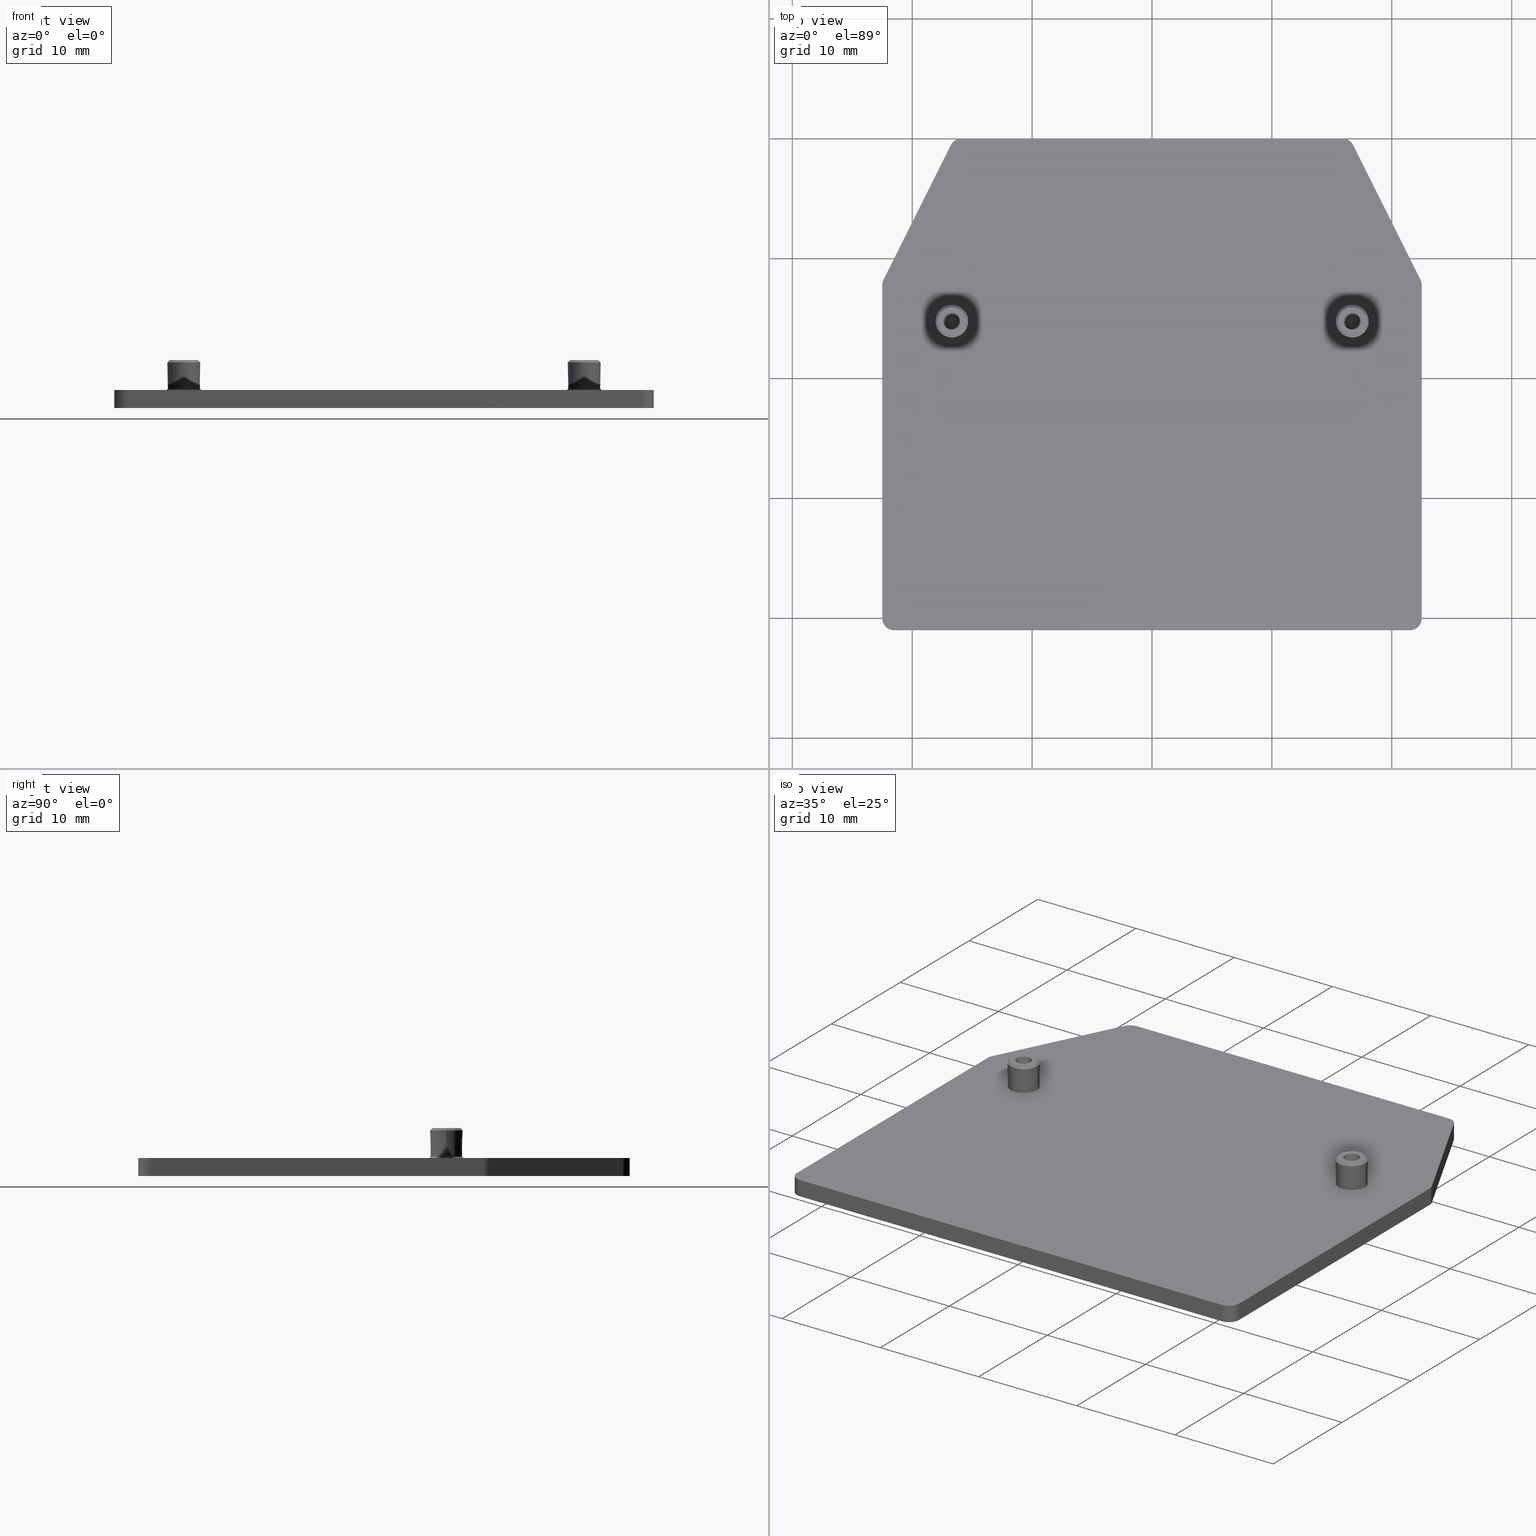
[diagram: canonical four-view strip — front | top / right | iso, engineering-drawing reading convention]
A machine part, canonical four-view strip (front | top / right | iso — engineering-drawing reading convention). The complete STEP part file that produces these views, byte-faithful:
ISO-10303-21;
HEADER;
FILE_DESCRIPTION((''),'2;1');
FILE_NAME('42164_EB10','2010-04-12T',('EJVarlan'),('Rockwell Automation'),
'PRO/ENGINEER BY PARAMETRIC TECHNOLOGY CORPORATION, 2007390',
'PRO/ENGINEER BY PARAMETRIC TECHNOLOGY CORPORATION, 2007390','');
FILE_SCHEMA(('CONFIG_CONTROL_DESIGN'));
ENDSEC;
DATA;
#1=DIRECTION('',(-4.472135955E-1,8.944271909999E-1,0.E0));
#2=VECTOR('',#1,1.256230589875E1);
#3=CARTESIAN_POINT('',(2.239442719100E1,-1.178885438200E1,-7.5E-1));
#4=LINE('',#3,#2);
#5=DIRECTION('',(-1.E0,0.E0,0.E0));
#6=VECTOR('',#5,3.176393202250E1);
#7=CARTESIAN_POINT('',(1.588196601125E1,0.E0,-7.5E-1));
#8=LINE('',#7,#6);
#9=DIRECTION('',(-4.472135955E-1,-8.944271909999E-1,0.E0));
#10=VECTOR('',#9,1.256230589875E1);
#11=CARTESIAN_POINT('',(-1.677639320225E1,-5.527864045E-1,-7.5E-1));
#12=LINE('',#11,#10);
#13=DIRECTION('',(0.E0,-1.E0,0.E0));
#14=VECTOR('',#13,2.776393202250E1);
#15=CARTESIAN_POINT('',(-2.25E1,-1.223606797750E1,-7.5E-1));
#16=LINE('',#15,#14);
#17=DIRECTION('',(1.E0,0.E0,0.E0));
#18=VECTOR('',#17,4.3E1);
#19=CARTESIAN_POINT('',(-2.15E1,-4.1E1,-7.5E-1));
#20=LINE('',#19,#18);
#21=DIRECTION('',(0.E0,1.E0,0.E0));
#22=VECTOR('',#21,2.776393202250E1);
#23=CARTESIAN_POINT('',(2.25E1,-4.E1,-7.5E-1));
#24=LINE('',#23,#22);
#25=DIRECTION('',(0.E0,0.E0,1.E0));
#26=VECTOR('',#25,1.5E0);
#27=CARTESIAN_POINT('',(2.25E1,-1.223606797750E1,-7.5E-1));
#28=LINE('',#27,#26);
#29=CARTESIAN_POINT('',(2.15E1,-1.223606797750E1,7.5E-1));
#30=DIRECTION('',(0.E0,0.E0,1.E0));
#31=DIRECTION('',(1.E0,0.E0,0.E0));
#32=AXIS2_PLACEMENT_3D('',#29,#30,#31);
#34=DIRECTION('',(0.E0,0.E0,1.E0));
#35=VECTOR('',#34,1.5E0);
#36=CARTESIAN_POINT('',(2.239442719100E1,-1.178885438200E1,-7.5E-1));
#37=LINE('',#36,#35);
#38=CARTESIAN_POINT('',(2.15E1,-1.223606797750E1,-7.5E-1));
#39=DIRECTION('',(0.E0,0.E0,1.E0));
#40=DIRECTION('',(1.E0,0.E0,0.E0));
#41=AXIS2_PLACEMENT_3D('',#38,#39,#40);
#43=DIRECTION('',(0.E0,0.E0,1.E0));
#44=VECTOR('',#43,1.5E0);
#45=CARTESIAN_POINT('',(2.25E1,-4.E1,-7.5E-1));
#46=LINE('',#45,#44);
#47=CARTESIAN_POINT('',(2.15E1,-4.E1,-7.5E-1));
#48=DIRECTION('',(0.E0,0.E0,-1.E0));
#49=DIRECTION('',(1.E0,0.E0,0.E0));
#50=AXIS2_PLACEMENT_3D('',#47,#48,#49);
#52=DIRECTION('',(0.E0,0.E0,1.E0));
#53=VECTOR('',#52,1.5E0);
#54=CARTESIAN_POINT('',(2.15E1,-4.1E1,-7.5E-1));
#55=LINE('',#54,#53);
#56=CARTESIAN_POINT('',(2.15E1,-4.E1,7.5E-1));
#57=DIRECTION('',(0.E0,0.E0,-1.E0));
#58=DIRECTION('',(1.E0,0.E0,0.E0));
#59=AXIS2_PLACEMENT_3D('',#56,#57,#58);
#61=DIRECTION('',(0.E0,0.E0,1.E0));
#62=VECTOR('',#61,1.5E0);
#63=CARTESIAN_POINT('',(-2.15E1,-4.1E1,-7.5E-1));
#64=LINE('',#63,#62);
#65=CARTESIAN_POINT('',(-2.15E1,-4.E1,-7.5E-1));
#66=DIRECTION('',(0.E0,0.E0,-1.E0));
#67=DIRECTION('',(0.E0,-1.E0,0.E0));
#68=AXIS2_PLACEMENT_3D('',#65,#66,#67);
#70=DIRECTION('',(0.E0,0.E0,1.E0));
#71=VECTOR('',#70,1.5E0);
#72=CARTESIAN_POINT('',(-2.25E1,-4.E1,-7.5E-1));
#73=LINE('',#72,#71);
#74=CARTESIAN_POINT('',(-2.15E1,-4.E1,7.5E-1));
#75=DIRECTION('',(0.E0,0.E0,-1.E0));
#76=DIRECTION('',(0.E0,-1.E0,0.E0));
#77=AXIS2_PLACEMENT_3D('',#74,#75,#76);
#79=DIRECTION('',(0.E0,0.E0,1.E0));
#80=VECTOR('',#79,1.5E0);
#81=CARTESIAN_POINT('',(-2.25E1,-1.223606797750E1,-7.5E-1));
#82=LINE('',#81,#80);
#83=CARTESIAN_POINT('',(-2.15E1,-1.223606797750E1,-7.5E-1));
#84=DIRECTION('',(0.E0,0.E0,-1.E0));
#85=DIRECTION('',(-1.E0,0.E0,0.E0));
#86=AXIS2_PLACEMENT_3D('',#83,#84,#85);
#88=DIRECTION('',(0.E0,0.E0,1.E0));
#89=VECTOR('',#88,1.5E0);
#90=CARTESIAN_POINT('',(-2.239442719100E1,-1.178885438200E1,-7.5E-1));
#91=LINE('',#90,#89);
#92=CARTESIAN_POINT('',(-2.15E1,-1.223606797750E1,7.5E-1));
#93=DIRECTION('',(0.E0,0.E0,-1.E0));
#94=DIRECTION('',(-1.E0,0.E0,0.E0));
#95=AXIS2_PLACEMENT_3D('',#92,#93,#94);
#97=DIRECTION('',(0.E0,0.E0,1.E0));
#98=VECTOR('',#97,1.5E0);
#99=CARTESIAN_POINT('',(-1.588196601125E1,0.E0,-7.5E-1));
#100=LINE('',#99,#98);
#101=CARTESIAN_POINT('',(-1.588196601125E1,-1.E0,7.5E-1));
#102=DIRECTION('',(0.E0,0.E0,1.E0));
#103=DIRECTION('',(0.E0,1.E0,0.E0));
#104=AXIS2_PLACEMENT_3D('',#101,#102,#103);
#106=DIRECTION('',(0.E0,0.E0,1.E0));
#107=VECTOR('',#106,1.5E0);
#108=CARTESIAN_POINT('',(-1.677639320225E1,-5.527864045E-1,-7.5E-1));
#109=LINE('',#108,#107);
#110=CARTESIAN_POINT('',(-1.588196601125E1,-1.E0,-7.5E-1));
#111=DIRECTION('',(0.E0,0.E0,1.E0));
#112=DIRECTION('',(0.E0,1.E0,0.E0));
#113=AXIS2_PLACEMENT_3D('',#110,#111,#112);
#115=DIRECTION('',(0.E0,0.E0,1.E0));
#116=VECTOR('',#115,1.5E0);
#117=CARTESIAN_POINT('',(1.588196601125E1,0.E0,-7.5E-1));
#118=LINE('',#117,#116);
#119=CARTESIAN_POINT('',(1.588196601125E1,-1.E0,-7.5E-1));
#120=DIRECTION('',(0.E0,0.E0,-1.E0));
#121=DIRECTION('',(0.E0,1.E0,0.E0));
#122=AXIS2_PLACEMENT_3D('',#119,#120,#121);
#124=DIRECTION('',(0.E0,0.E0,1.E0));
#125=VECTOR('',#124,1.5E0);
#126=CARTESIAN_POINT('',(1.677639320225E1,-5.527864045E-1,-7.5E-1));
#127=LINE('',#126,#125);
#128=CARTESIAN_POINT('',(1.588196601125E1,-1.E0,7.5E-1));
#129=DIRECTION('',(0.E0,0.E0,-1.E0));
#130=DIRECTION('',(0.E0,1.E0,0.E0));
#131=AXIS2_PLACEMENT_3D('',#128,#129,#130);
#133=DIRECTION('',(-4.472135955E-1,8.944271909999E-1,0.E0));
#134=VECTOR('',#133,1.256230589875E1);
#135=CARTESIAN_POINT('',(2.239442719100E1,-1.178885438200E1,7.5E-1));
#136=LINE('',#135,#134);
#137=DIRECTION('',(0.E0,1.E0,0.E0));
#138=VECTOR('',#137,2.776393202250E1);
#139=CARTESIAN_POINT('',(2.25E1,-4.E1,7.5E-1));
#140=LINE('',#139,#138);
#141=DIRECTION('',(1.E0,0.E0,0.E0));
#142=VECTOR('',#141,4.3E1);
#143=CARTESIAN_POINT('',(-2.15E1,-4.1E1,7.5E-1));
#144=LINE('',#143,#142);
#145=DIRECTION('',(0.E0,-1.E0,0.E0));
#146=VECTOR('',#145,2.776393202250E1);
#147=CARTESIAN_POINT('',(-2.25E1,-1.223606797750E1,7.5E-1));
#148=LINE('',#147,#146);
#149=DIRECTION('',(-4.472135955E-1,-8.944271909999E-1,0.E0));
#150=VECTOR('',#149,1.256230589875E1);
#151=CARTESIAN_POINT('',(-1.677639320225E1,-5.527864045E-1,7.5E-1));
#152=LINE('',#151,#150);
#153=DIRECTION('',(-1.E0,0.E0,0.E0));
#154=VECTOR('',#153,3.176393202250E1);
#155=CARTESIAN_POINT('',(1.588196601125E1,0.E0,7.5E-1));
#156=LINE('',#155,#154);
#157=CARTESIAN_POINT('',(1.67E1,-1.53E1,7.5E-1));
#158=DIRECTION('',(0.E0,0.E0,-1.E0));
#159=DIRECTION('',(1.E0,3.490385368646E-14,0.E0));
#160=AXIS2_PLACEMENT_3D('',#157,#158,#159);
#162=DIRECTION('',(7.000014281415E-1,-1.141941352680E-13,7.141414429928E-1));
#163=VECTOR('',#162,1.400002856283E-1);
#164=CARTESIAN_POINT('',(1.5275E1,-1.53E1,7.5E-1));
#165=LINE('',#164,#163);
#166=CARTESIAN_POINT('',(1.67E1,-1.53E1,8.499800059980E-1));
#167=DIRECTION('',(0.E0,0.E0,-1.E0));
#168=DIRECTION('',(1.E0,0.E0,0.E0));
#169=AXIS2_PLACEMENT_3D('',#166,#167,#168);
#171=DIRECTION('',(-7.000014281415E-1,-1.141941352680E-13,7.141414429928E-1));
#172=VECTOR('',#171,1.400002856283E-1);
#173=CARTESIAN_POINT('',(1.8125E1,-1.53E1,7.5E-1));
#174=LINE('',#173,#172);
#175=CARTESIAN_POINT('',(1.67E1,-1.53E1,7.5E-1));
#176=DIRECTION('',(0.E0,0.E0,-1.E0));
#177=DIRECTION('',(-1.E0,3.490385368646E-14,0.E0));
#178=AXIS2_PLACEMENT_3D('',#175,#176,#177);
#180=CARTESIAN_POINT('',(1.67E1,-1.53E1,8.499800059980E-1));
#181=DIRECTION('',(0.E0,0.E0,-1.E0));
#182=DIRECTION('',(-1.E0,0.E0,0.E0));
#183=AXIS2_PLACEMENT_3D('',#180,#181,#182);
#185=DIRECTION('',(1.999600119960E-2,0.E0,9.998000599800E-1));
#186=VECTOR('',#185,2.200499950010E0);
#187=CARTESIAN_POINT('',(1.802699960012E1,-1.53E1,8.499800059980E-1));
#188=LINE('',#187,#186);
#189=DIRECTION('',(-1.999600119960E-2,0.E0,9.998000599800E-1));
#190=VECTOR('',#189,2.200499950010E0);
#191=CARTESIAN_POINT('',(1.537300039988E1,-1.53E1,8.499800059980E-1));
#192=LINE('',#191,#190);
#193=CARTESIAN_POINT('',(1.67E1,-1.53E1,3.25E0));
#194=DIRECTION('',(0.E0,0.E0,-1.E0));
#195=DIRECTION('',(1.E0,0.E0,0.E0));
#196=AXIS2_PLACEMENT_3D('',#193,#194,#195);
#198=DIRECTION('',(7.000014281415E-1,0.E0,-7.141414429928E-1));
#199=VECTOR('',#198,2.800005712566E-1);
#200=CARTESIAN_POINT('',(1.7875E1,-1.53E1,3.25E0));
#201=LINE('',#200,#199);
#202=CARTESIAN_POINT('',(1.67E1,-1.53E1,3.050039988004E0));
#203=DIRECTION('',(0.E0,0.E0,-1.E0));
#204=DIRECTION('',(1.E0,0.E0,0.E0));
#205=AXIS2_PLACEMENT_3D('',#202,#203,#204);
#207=DIRECTION('',(-7.000014281416E-1,0.E0,-7.141414429928E-1));
#208=VECTOR('',#207,2.800005712566E-1);
#209=CARTESIAN_POINT('',(1.5525E1,-1.53E1,3.25E0));
#210=LINE('',#209,#208);
#211=CARTESIAN_POINT('',(1.67E1,-1.53E1,3.25E0));
#212=DIRECTION('',(0.E0,0.E0,1.E0));
#213=DIRECTION('',(1.E0,0.E0,0.E0));
#214=AXIS2_PLACEMENT_3D('',#211,#212,#213);
#216=CARTESIAN_POINT('',(1.67E1,-1.53E1,3.25E0));
#217=DIRECTION('',(0.E0,0.E0,1.E0));
#218=DIRECTION('',(-1.E0,0.E0,0.E0));
#219=AXIS2_PLACEMENT_3D('',#216,#217,#218);
#221=CARTESIAN_POINT('',(1.67E1,-1.53E1,3.25E0));
#222=DIRECTION('',(0.E0,0.E0,1.E0));
#223=DIRECTION('',(1.E0,0.E0,0.E0));
#224=AXIS2_PLACEMENT_3D('',#221,#222,#223);
#226=CARTESIAN_POINT('',(1.67E1,-1.53E1,3.050039988004E0));
#227=DIRECTION('',(0.E0,0.E0,1.E0));
#228=DIRECTION('',(1.E0,0.E0,0.E0));
#229=AXIS2_PLACEMENT_3D('',#226,#227,#228);
#231=CARTESIAN_POINT('',(1.67E1,-1.53E1,1.407571664635E0));
#232=DIRECTION('',(0.E0,0.E0,1.E0));
#233=DIRECTION('',(1.E0,0.E0,0.E0));
#234=AXIS2_PLACEMENT_3D('',#231,#232,#233);
#236=DIRECTION('',(-8.715574274766E-2,0.E0,9.961946980917E-1));
#237=VECTOR('',#236,1.849466112292E0);
#238=CARTESIAN_POINT('',(1.616119159270E1,-1.53E1,1.407571664635E0));
#239=LINE('',#238,#237);
#240=CARTESIAN_POINT('',(1.67E1,-1.53E1,1.407571664635E0));
#241=DIRECTION('',(0.E0,0.E0,-1.E0));
#242=DIRECTION('',(1.E0,0.E0,0.E0));
#243=AXIS2_PLACEMENT_3D('',#240,#241,#242);
#245=DIRECTION('',(8.715574274766E-2,0.E0,9.961946980917E-1));
#246=VECTOR('',#245,1.849466112292E0);
#247=CARTESIAN_POINT('',(1.723880840730E1,-1.53E1,1.407571664635E0));
#248=LINE('',#247,#246);
#249=CARTESIAN_POINT('',(1.67E1,-1.53E1,2.25E0));
#250=DIRECTION('',(0.E0,-1.E0,0.E0));
#251=DIRECTION('',(0.E0,0.E0,-1.E0));
#252=AXIS2_PLACEMENT_3D('',#249,#250,#251);
#254=CARTESIAN_POINT('',(1.67E1,-1.53E1,2.25E0));
#255=DIRECTION('',(0.E0,1.E0,0.E0));
#256=DIRECTION('',(0.E0,0.E0,-1.E0));
#257=AXIS2_PLACEMENT_3D('',#254,#255,#256);
#259=CARTESIAN_POINT('',(-1.67E1,-1.53E1,7.5E-1));
#260=DIRECTION('',(0.E0,0.E0,1.E0));
#261=DIRECTION('',(-1.E0,3.490385368646E-14,0.E0));
#262=AXIS2_PLACEMENT_3D('',#259,#260,#261);
#264=DIRECTION('',(7.000014281415E-1,-1.141941352680E-13,7.141414429928E-1));
#265=VECTOR('',#264,1.400002856283E-1);
#266=CARTESIAN_POINT('',(-1.8125E1,-1.53E1,7.5E-1));
#267=LINE('',#266,#265);
#268=CARTESIAN_POINT('',(-1.67E1,-1.53E1,8.499800059980E-1));
#269=DIRECTION('',(0.E0,0.E0,1.E0));
#270=DIRECTION('',(-1.E0,0.E0,0.E0));
#271=AXIS2_PLACEMENT_3D('',#268,#269,#270);
#273=DIRECTION('',(-7.000014281415E-1,-8.881766076402E-14,7.141414429928E-1));
#274=VECTOR('',#273,1.400002856283E-1);
#275=CARTESIAN_POINT('',(-1.5275E1,-1.53E1,7.5E-1));
#276=LINE('',#275,#274);
#277=CARTESIAN_POINT('',(-1.67E1,-1.53E1,7.5E-1));
#278=DIRECTION('',(0.E0,0.E0,1.E0));
#279=DIRECTION('',(1.E0,2.617789026485E-14,0.E0));
#280=AXIS2_PLACEMENT_3D('',#277,#278,#279);
#282=CARTESIAN_POINT('',(-1.67E1,-1.53E1,8.499800059980E-1));
#283=DIRECTION('',(0.E0,0.E0,1.E0));
#284=DIRECTION('',(1.E0,0.E0,0.E0));
#285=AXIS2_PLACEMENT_3D('',#282,#283,#284);
#287=DIRECTION('',(1.999600119960E-2,0.E0,9.998000599800E-1));
#288=VECTOR('',#287,2.204382306872E0);
#289=CARTESIAN_POINT('',(-1.537300039988E1,-1.53E1,8.499800059980E-1));
#290=LINE('',#289,#288);
#291=DIRECTION('',(-1.999600119960E-2,0.E0,9.998000599800E-1));
#292=VECTOR('',#291,2.204382306872E0);
#293=CARTESIAN_POINT('',(-1.802699960012E1,-1.53E1,8.499800059980E-1));
#294=LINE('',#293,#292);
#295=CARTESIAN_POINT('',(-1.67E1,-1.53E1,3.25E0));
#296=DIRECTION('',(0.E0,0.E0,1.E0));
#297=DIRECTION('',(-1.E0,0.E0,0.E0));
#298=AXIS2_PLACEMENT_3D('',#295,#296,#297);
#300=DIRECTION('',(7.071067811865E-1,0.E0,-7.071067811866E-1));
#301=VECTOR('',#300,2.772967769359E-1);
#302=CARTESIAN_POINT('',(-1.5525E1,-1.53E1,3.25E0));
#303=LINE('',#302,#301);
#304=CARTESIAN_POINT('',(-1.67E1,-1.53E1,3.053921568627E0));
#305=DIRECTION('',(0.E0,0.E0,1.E0));
#306=DIRECTION('',(-1.E0,0.E0,0.E0));
#307=AXIS2_PLACEMENT_3D('',#304,#305,#306);
#309=DIRECTION('',(-7.071067811865E-1,0.E0,-7.071067811866E-1));
#310=VECTOR('',#309,2.772967769359E-1);
#311=CARTESIAN_POINT('',(-1.7875E1,-1.53E1,3.25E0));
#312=LINE('',#311,#310);
#313=CARTESIAN_POINT('',(-1.67E1,-1.53E1,3.25E0));
#314=DIRECTION('',(0.E0,0.E0,-1.E0));
#315=DIRECTION('',(-1.E0,0.E0,0.E0));
#316=AXIS2_PLACEMENT_3D('',#313,#314,#315);
#318=CARTESIAN_POINT('',(-1.67E1,-1.53E1,3.25E0));
#319=DIRECTION('',(0.E0,0.E0,-1.E0));
#320=DIRECTION('',(1.E0,0.E0,0.E0));
#321=AXIS2_PLACEMENT_3D('',#318,#319,#320);
#323=CARTESIAN_POINT('',(-1.67E1,-1.53E1,3.25E0));
#324=DIRECTION('',(0.E0,0.E0,-1.E0));
#325=DIRECTION('',(-1.E0,0.E0,0.E0));
#326=AXIS2_PLACEMENT_3D('',#323,#324,#325);
#328=CARTESIAN_POINT('',(-1.67E1,-1.53E1,3.053921568627E0));
#329=DIRECTION('',(0.E0,0.E0,-1.E0));
#330=DIRECTION('',(-1.E0,0.E0,0.E0));
#331=AXIS2_PLACEMENT_3D('',#328,#329,#330);
#333=CARTESIAN_POINT('',(-1.67E1,-1.53E1,1.407571664635E0));
#334=DIRECTION('',(0.E0,0.E0,-1.E0));
#335=DIRECTION('',(-1.E0,0.E0,0.E0));
#336=AXIS2_PLACEMENT_3D('',#333,#334,#335);
#338=DIRECTION('',(-8.715574274766E-2,0.E0,9.961946980917E-1));
#339=VECTOR('',#338,1.849466112292E0);
#340=CARTESIAN_POINT('',(-1.723880840730E1,-1.53E1,1.407571664635E0));
#341=LINE('',#340,#339);
#342=CARTESIAN_POINT('',(-1.67E1,-1.53E1,1.407571664635E0));
#343=DIRECTION('',(0.E0,0.E0,1.E0));
#344=DIRECTION('',(-1.E0,0.E0,0.E0));
#345=AXIS2_PLACEMENT_3D('',#342,#343,#344);
#347=DIRECTION('',(8.715574274766E-2,0.E0,9.961946980917E-1));
#348=VECTOR('',#347,1.849466112292E0);
#349=CARTESIAN_POINT('',(-1.616119159270E1,-1.53E1,1.407571664635E0));
#350=LINE('',#349,#348);
#351=CARTESIAN_POINT('',(-1.67E1,-1.53E1,2.25E0));
#352=DIRECTION('',(0.E0,1.E0,0.E0));
#353=DIRECTION('',(0.E0,0.E0,-1.E0));
#354=AXIS2_PLACEMENT_3D('',#351,#352,#353);
#356=CARTESIAN_POINT('',(-1.67E1,-1.53E1,2.25E0));
#357=DIRECTION('',(0.E0,-1.E0,0.E0));
#358=DIRECTION('',(0.E0,0.E0,-1.E0));
#359=AXIS2_PLACEMENT_3D('',#356,#357,#358);
#361=CARTESIAN_POINT('',(1.67E1,-1.53E1,1.25E0));
#362=CARTESIAN_POINT('',(1.723880840730E1,-1.53E1,1.407571664635E0));
#363=VERTEX_POINT('',#361);
#364=VERTEX_POINT('',#362);
#365=CARTESIAN_POINT('',(1.616119159270E1,-1.53E1,1.407571664635E0));
#366=VERTEX_POINT('',#365);
#367=CARTESIAN_POINT('',(1.74E1,-1.53E1,3.25E0));
#368=CARTESIAN_POINT('',(1.6E1,-1.53E1,3.25E0));
#369=VERTEX_POINT('',#367);
#370=VERTEX_POINT('',#368);
#371=CARTESIAN_POINT('',(2.25E1,-4.E1,-7.5E-1));
#372=CARTESIAN_POINT('',(2.25E1,-4.E1,7.5E-1));
#373=VERTEX_POINT('',#371);
#374=VERTEX_POINT('',#372);
#375=CARTESIAN_POINT('',(2.15E1,-4.1E1,-7.5E-1));
#376=CARTESIAN_POINT('',(2.15E1,-4.1E1,7.5E-1));
#377=VERTEX_POINT('',#375);
#378=VERTEX_POINT('',#376);
#379=CARTESIAN_POINT('',(-2.15E1,-4.1E1,-7.5E-1));
#380=CARTESIAN_POINT('',(-2.15E1,-4.1E1,7.5E-1));
#381=VERTEX_POINT('',#379);
#382=VERTEX_POINT('',#380);
#383=CARTESIAN_POINT('',(-2.25E1,-4.E1,-7.5E-1));
#384=CARTESIAN_POINT('',(-2.25E1,-4.E1,7.5E-1));
#385=VERTEX_POINT('',#383);
#386=VERTEX_POINT('',#384);
#387=CARTESIAN_POINT('',(-1.67E1,-1.53E1,1.25E0));
#388=CARTESIAN_POINT('',(-1.723880840730E1,-1.53E1,1.407571664635E0));
#389=VERTEX_POINT('',#387);
#390=VERTEX_POINT('',#388);
#391=CARTESIAN_POINT('',(-1.616119159270E1,-1.53E1,1.407571664635E0));
#392=VERTEX_POINT('',#391);
#393=CARTESIAN_POINT('',(-1.74E1,-1.53E1,3.25E0));
#394=CARTESIAN_POINT('',(-1.6E1,-1.53E1,3.25E0));
#395=VERTEX_POINT('',#393);
#396=VERTEX_POINT('',#394);
#397=CARTESIAN_POINT('',(1.7875E1,-1.53E1,3.25E0));
#398=CARTESIAN_POINT('',(1.5525E1,-1.53E1,3.25E0));
#399=VERTEX_POINT('',#397);
#400=VERTEX_POINT('',#398);
#401=CARTESIAN_POINT('',(1.807100079976E1,-1.53E1,3.050039988004E0));
#402=CARTESIAN_POINT('',(1.532899920024E1,-1.53E1,3.050039988004E0));
#403=VERTEX_POINT('',#401);
#404=VERTEX_POINT('',#402);
#405=CARTESIAN_POINT('',(-1.7875E1,-1.53E1,3.25E0));
#406=CARTESIAN_POINT('',(-1.5525E1,-1.53E1,3.25E0));
#407=VERTEX_POINT('',#405);
#408=VERTEX_POINT('',#406);
#409=CARTESIAN_POINT('',(-1.807107843137E1,-1.53E1,3.053921568627E0));
#410=CARTESIAN_POINT('',(-1.532892156863E1,-1.53E1,3.053921568627E0));
#411=VERTEX_POINT('',#409);
#412=VERTEX_POINT('',#410);
#413=CARTESIAN_POINT('',(1.5275E1,-1.53E1,7.5E-1));
#414=CARTESIAN_POINT('',(1.8125E1,-1.53E1,7.5E-1));
#415=VERTEX_POINT('',#413);
#416=VERTEX_POINT('',#414);
#417=CARTESIAN_POINT('',(1.537300039988E1,-1.53E1,8.499800059980E-1));
#418=CARTESIAN_POINT('',(1.802699960012E1,-1.53E1,8.499800059980E-1));
#419=VERTEX_POINT('',#417);
#420=VERTEX_POINT('',#418);
#421=CARTESIAN_POINT('',(-1.5275E1,-1.53E1,7.5E-1));
#422=CARTESIAN_POINT('',(-1.8125E1,-1.53E1,7.5E-1));
#423=VERTEX_POINT('',#421);
#424=VERTEX_POINT('',#422);
#425=CARTESIAN_POINT('',(-1.537300039988E1,-1.53E1,8.499800059980E-1));
#426=CARTESIAN_POINT('',(-1.802699960012E1,-1.53E1,8.499800059980E-1));
#427=VERTEX_POINT('',#425);
#428=VERTEX_POINT('',#426);
#429=CARTESIAN_POINT('',(2.25E1,-1.223606797750E1,-7.5E-1));
#430=CARTESIAN_POINT('',(2.25E1,-1.223606797750E1,7.5E-1));
#431=VERTEX_POINT('',#429);
#432=VERTEX_POINT('',#430);
#433=CARTESIAN_POINT('',(2.239442719100E1,-1.178885438200E1,-7.5E-1));
#434=CARTESIAN_POINT('',(2.239442719100E1,-1.178885438200E1,7.5E-1));
#435=VERTEX_POINT('',#433);
#436=VERTEX_POINT('',#434);
#437=CARTESIAN_POINT('',(1.588196601125E1,0.E0,-7.5E-1));
#438=CARTESIAN_POINT('',(1.588196601125E1,0.E0,7.5E-1));
#439=VERTEX_POINT('',#437);
#440=VERTEX_POINT('',#438);
#441=CARTESIAN_POINT('',(1.677639320225E1,-5.527864045E-1,-7.5E-1));
#442=CARTESIAN_POINT('',(1.677639320225E1,-5.527864045E-1,7.5E-1));
#443=VERTEX_POINT('',#441);
#444=VERTEX_POINT('',#442);
#445=CARTESIAN_POINT('',(-1.588196601125E1,0.E0,-7.5E-1));
#446=CARTESIAN_POINT('',(-1.588196601125E1,0.E0,7.5E-1));
#447=VERTEX_POINT('',#445);
#448=VERTEX_POINT('',#446);
#449=CARTESIAN_POINT('',(-1.677639320225E1,-5.527864045E-1,-7.5E-1));
#450=CARTESIAN_POINT('',(-1.677639320225E1,-5.527864045E-1,7.5E-1));
#451=VERTEX_POINT('',#449);
#452=VERTEX_POINT('',#450);
#453=CARTESIAN_POINT('',(-2.25E1,-1.223606797750E1,-7.5E-1));
#454=CARTESIAN_POINT('',(-2.25E1,-1.223606797750E1,7.5E-1));
#455=VERTEX_POINT('',#453);
#456=VERTEX_POINT('',#454);
#457=CARTESIAN_POINT('',(-2.239442719100E1,-1.178885438200E1,-7.5E-1));
#458=CARTESIAN_POINT('',(-2.239442719100E1,-1.178885438200E1,7.5E-1));
#459=VERTEX_POINT('',#457);
#460=VERTEX_POINT('',#458);
#461=CARTESIAN_POINT('',(0.E0,0.E0,-7.5E-1));
#462=DIRECTION('',(0.E0,0.E0,1.E0));
#463=DIRECTION('',(1.E0,0.E0,0.E0));
#464=AXIS2_PLACEMENT_3D('',#461,#462,#463);
#465=PLANE('',#464);
#467=ORIENTED_EDGE('',*,*,#466,.T.);
#469=ORIENTED_EDGE('',*,*,#468,.F.);
#471=ORIENTED_EDGE('',*,*,#470,.T.);
#473=ORIENTED_EDGE('',*,*,#472,.T.);
#475=ORIENTED_EDGE('',*,*,#474,.T.);
#477=ORIENTED_EDGE('',*,*,#476,.F.);
#479=ORIENTED_EDGE('',*,*,#478,.T.);
#481=ORIENTED_EDGE('',*,*,#480,.F.);
#483=ORIENTED_EDGE('',*,*,#482,.T.);
#485=ORIENTED_EDGE('',*,*,#484,.F.);
#487=ORIENTED_EDGE('',*,*,#486,.T.);
#489=ORIENTED_EDGE('',*,*,#488,.T.);
#490=EDGE_LOOP('',(#467,#469,#471,#473,#475,#477,#479,#481,#483,#485,#487,
#489));
#491=FACE_OUTER_BOUND('',#490,.F.);
#492=ADVANCED_FACE('',(#491),#465,.F.);
#493=CARTESIAN_POINT('',(2.25E1,-1.2E1,-7.5E-1));
#494=DIRECTION('',(-8.944271909999E-1,-4.472135955E-1,0.E0));
#495=DIRECTION('',(-4.472135955E-1,8.944271909999E-1,0.E0));
#496=AXIS2_PLACEMENT_3D('',#493,#494,#495);
#497=PLANE('',#496);
#498=ORIENTED_EDGE('',*,*,#466,.F.);
#500=ORIENTED_EDGE('',*,*,#499,.T.);
#502=ORIENTED_EDGE('',*,*,#501,.T.);
#504=ORIENTED_EDGE('',*,*,#503,.F.);
#505=EDGE_LOOP('',(#498,#500,#502,#504));
#506=FACE_OUTER_BOUND('',#505,.F.);
#507=ADVANCED_FACE('',(#506),#497,.F.);
#508=CARTESIAN_POINT('',(2.15E1,-1.223606797750E1,-7.5E-1));
#509=DIRECTION('',(0.E0,0.E0,1.E0));
#510=DIRECTION('',(1.E0,0.E0,0.E0));
#511=AXIS2_PLACEMENT_3D('',#508,#509,#510);
#512=CYLINDRICAL_SURFACE('',#511,1.E0);
#514=ORIENTED_EDGE('',*,*,#513,.T.);
#516=ORIENTED_EDGE('',*,*,#515,.T.);
#517=ORIENTED_EDGE('',*,*,#499,.F.);
#518=ORIENTED_EDGE('',*,*,#488,.F.);
#519=EDGE_LOOP('',(#514,#516,#517,#518));
#520=FACE_OUTER_BOUND('',#519,.F.);
#521=ADVANCED_FACE('',(#520),#512,.T.);
#522=CARTESIAN_POINT('',(2.25E1,-4.1E1,-7.5E-1));
#523=DIRECTION('',(1.E0,0.E0,0.E0));
#524=DIRECTION('',(0.E0,1.E0,0.E0));
#525=AXIS2_PLACEMENT_3D('',#522,#523,#524);
#526=PLANE('',#525);
#527=ORIENTED_EDGE('',*,*,#513,.F.);
#528=ORIENTED_EDGE('',*,*,#486,.F.);
#530=ORIENTED_EDGE('',*,*,#529,.T.);
#532=ORIENTED_EDGE('',*,*,#531,.T.);
#533=EDGE_LOOP('',(#527,#528,#530,#532));
#534=FACE_OUTER_BOUND('',#533,.F.);
#535=ADVANCED_FACE('',(#534),#526,.T.);
#536=CARTESIAN_POINT('',(2.15E1,-4.E1,-7.5E-1));
#537=DIRECTION('',(0.E0,0.E0,-1.E0));
#538=DIRECTION('',(1.E0,0.E0,0.E0));
#539=AXIS2_PLACEMENT_3D('',#536,#537,#538);
#540=CYLINDRICAL_SURFACE('',#539,1.E0);
#541=ORIENTED_EDGE('',*,*,#529,.F.);
#542=ORIENTED_EDGE('',*,*,#484,.T.);
#544=ORIENTED_EDGE('',*,*,#543,.T.);
#546=ORIENTED_EDGE('',*,*,#545,.F.);
#547=EDGE_LOOP('',(#541,#542,#544,#546));
#548=FACE_OUTER_BOUND('',#547,.F.);
#549=ADVANCED_FACE('',(#548),#540,.T.);
#550=CARTESIAN_POINT('',(-2.25E1,-4.1E1,-7.5E-1));
#551=DIRECTION('',(0.E0,-1.E0,0.E0));
#552=DIRECTION('',(1.E0,0.E0,0.E0));
#553=AXIS2_PLACEMENT_3D('',#550,#551,#552);
#554=PLANE('',#553);
#555=ORIENTED_EDGE('',*,*,#482,.F.);
#557=ORIENTED_EDGE('',*,*,#556,.T.);
#559=ORIENTED_EDGE('',*,*,#558,.T.);
#560=ORIENTED_EDGE('',*,*,#543,.F.);
#561=EDGE_LOOP('',(#555,#557,#559,#560));
#562=FACE_OUTER_BOUND('',#561,.F.);
#563=ADVANCED_FACE('',(#562),#554,.T.);
#564=CARTESIAN_POINT('',(-2.15E1,-4.E1,-7.5E-1));
#565=DIRECTION('',(0.E0,0.E0,-1.E0));
#566=DIRECTION('',(0.E0,-1.E0,0.E0));
#567=AXIS2_PLACEMENT_3D('',#564,#565,#566);
#568=CYLINDRICAL_SURFACE('',#567,1.E0);
#569=ORIENTED_EDGE('',*,*,#556,.F.);
#570=ORIENTED_EDGE('',*,*,#480,.T.);
#572=ORIENTED_EDGE('',*,*,#571,.T.);
#574=ORIENTED_EDGE('',*,*,#573,.F.);
#575=EDGE_LOOP('',(#569,#570,#572,#574));
#576=FACE_OUTER_BOUND('',#575,.F.);
#577=ADVANCED_FACE('',(#576),#568,.T.);
#578=CARTESIAN_POINT('',(-2.25E1,0.E0,-7.5E-1));
#579=DIRECTION('',(-1.E0,0.E0,0.E0));
#580=DIRECTION('',(0.E0,-1.E0,0.E0));
#581=AXIS2_PLACEMENT_3D('',#578,#579,#580);
#582=PLANE('',#581);
#584=ORIENTED_EDGE('',*,*,#583,.T.);
#586=ORIENTED_EDGE('',*,*,#585,.T.);
#587=ORIENTED_EDGE('',*,*,#571,.F.);
#588=ORIENTED_EDGE('',*,*,#478,.F.);
#589=EDGE_LOOP('',(#584,#586,#587,#588));
#590=FACE_OUTER_BOUND('',#589,.F.);
#591=ADVANCED_FACE('',(#590),#582,.T.);
#592=CARTESIAN_POINT('',(-2.15E1,-1.223606797750E1,-7.5E-1));
#593=DIRECTION('',(0.E0,0.E0,-1.E0));
#594=DIRECTION('',(-1.E0,0.E0,0.E0));
#595=AXIS2_PLACEMENT_3D('',#592,#593,#594);
#596=CYLINDRICAL_SURFACE('',#595,1.E0);
#597=ORIENTED_EDGE('',*,*,#583,.F.);
#598=ORIENTED_EDGE('',*,*,#476,.T.);
#600=ORIENTED_EDGE('',*,*,#599,.T.);
#602=ORIENTED_EDGE('',*,*,#601,.F.);
#603=EDGE_LOOP('',(#597,#598,#600,#602));
#604=FACE_OUTER_BOUND('',#603,.F.);
#605=ADVANCED_FACE('',(#604),#596,.T.);
#606=CARTESIAN_POINT('',(-1.65E1,0.E0,-7.5E-1));
#607=DIRECTION('',(8.944271909999E-1,-4.472135955E-1,0.E0));
#608=DIRECTION('',(-4.472135955E-1,-8.944271909999E-1,0.E0));
#609=AXIS2_PLACEMENT_3D('',#606,#607,#608);
#610=PLANE('',#609);
#611=ORIENTED_EDGE('',*,*,#474,.F.);
#613=ORIENTED_EDGE('',*,*,#612,.T.);
#615=ORIENTED_EDGE('',*,*,#614,.T.);
#616=ORIENTED_EDGE('',*,*,#599,.F.);
#617=EDGE_LOOP('',(#611,#613,#615,#616));
#618=FACE_OUTER_BOUND('',#617,.F.);
#619=ADVANCED_FACE('',(#618),#610,.F.);
#620=CARTESIAN_POINT('',(-1.588196601125E1,-1.E0,-7.5E-1));
#621=DIRECTION('',(0.E0,0.E0,1.E0));
#622=DIRECTION('',(0.E0,1.E0,0.E0));
#623=AXIS2_PLACEMENT_3D('',#620,#621,#622);
#624=CYLINDRICAL_SURFACE('',#623,1.E0);
#626=ORIENTED_EDGE('',*,*,#625,.T.);
#628=ORIENTED_EDGE('',*,*,#627,.T.);
#629=ORIENTED_EDGE('',*,*,#612,.F.);
#630=ORIENTED_EDGE('',*,*,#472,.F.);
#631=EDGE_LOOP('',(#626,#628,#629,#630));
#632=FACE_OUTER_BOUND('',#631,.F.);
#633=ADVANCED_FACE('',(#632),#624,.T.);
#634=CARTESIAN_POINT('',(2.25E1,0.E0,-7.5E-1));
#635=DIRECTION('',(0.E0,1.E0,0.E0));
#636=DIRECTION('',(-1.E0,0.E0,0.E0));
#637=AXIS2_PLACEMENT_3D('',#634,#635,#636);
#638=PLANE('',#637);
#640=ORIENTED_EDGE('',*,*,#639,.T.);
#642=ORIENTED_EDGE('',*,*,#641,.T.);
#643=ORIENTED_EDGE('',*,*,#625,.F.);
#644=ORIENTED_EDGE('',*,*,#470,.F.);
#645=EDGE_LOOP('',(#640,#642,#643,#644));
#646=FACE_OUTER_BOUND('',#645,.F.);
#647=ADVANCED_FACE('',(#646),#638,.T.);
#648=CARTESIAN_POINT('',(1.588196601125E1,-1.E0,-7.5E-1));
#649=DIRECTION('',(0.E0,0.E0,-1.E0));
#650=DIRECTION('',(0.E0,1.E0,0.E0));
#651=AXIS2_PLACEMENT_3D('',#648,#649,#650);
#652=CYLINDRICAL_SURFACE('',#651,1.E0);
#653=ORIENTED_EDGE('',*,*,#639,.F.);
#654=ORIENTED_EDGE('',*,*,#468,.T.);
#655=ORIENTED_EDGE('',*,*,#503,.T.);
#657=ORIENTED_EDGE('',*,*,#656,.F.);
#658=EDGE_LOOP('',(#653,#654,#655,#657));
#659=FACE_OUTER_BOUND('',#658,.F.);
#660=ADVANCED_FACE('',(#659),#652,.T.);
#661=CARTESIAN_POINT('',(0.E0,0.E0,7.5E-1));
#662=DIRECTION('',(0.E0,0.E0,1.E0));
#663=DIRECTION('',(1.E0,0.E0,0.E0));
#664=AXIS2_PLACEMENT_3D('',#661,#662,#663);
#665=PLANE('',#664);
#666=ORIENTED_EDGE('',*,*,#501,.F.);
#667=ORIENTED_EDGE('',*,*,#515,.F.);
#668=ORIENTED_EDGE('',*,*,#531,.F.);
#669=ORIENTED_EDGE('',*,*,#545,.T.);
#670=ORIENTED_EDGE('',*,*,#558,.F.);
#671=ORIENTED_EDGE('',*,*,#573,.T.);
#672=ORIENTED_EDGE('',*,*,#585,.F.);
#673=ORIENTED_EDGE('',*,*,#601,.T.);
#674=ORIENTED_EDGE('',*,*,#614,.F.);
#675=ORIENTED_EDGE('',*,*,#627,.F.);
#676=ORIENTED_EDGE('',*,*,#641,.F.);
#677=ORIENTED_EDGE('',*,*,#656,.T.);
#678=EDGE_LOOP('',(#666,#667,#668,#669,#670,#671,#672,#673,#674,#675,#676,
#677));
#679=FACE_OUTER_BOUND('',#678,.F.);
#681=ORIENTED_EDGE('',*,*,#680,.F.);
#683=ORIENTED_EDGE('',*,*,#682,.F.);
#684=EDGE_LOOP('',(#681,#683));
#685=FACE_BOUND('',#684,.F.);
#687=ORIENTED_EDGE('',*,*,#686,.T.);
#689=ORIENTED_EDGE('',*,*,#688,.T.);
#690=EDGE_LOOP('',(#687,#689));
#691=FACE_BOUND('',#690,.F.);
#692=ADVANCED_FACE('',(#679,#685,#691),#665,.T.);
#693=CARTESIAN_POINT('',(1.67E1,-1.53E1,3.607579940013E0));
#694=DIRECTION('',(0.E0,0.E0,1.E0));
#695=DIRECTION('',(-1.E0,0.E0,0.E0));
#696=AXIS2_PLACEMENT_3D('',#693,#694,#695);
#697=CONICAL_SURFACE('',#696,1.375999800060E0,4.442711858091E1);
#698=ORIENTED_EDGE('',*,*,#680,.T.);
#700=ORIENTED_EDGE('',*,*,#699,.T.);
#702=ORIENTED_EDGE('',*,*,#701,.F.);
#704=ORIENTED_EDGE('',*,*,#703,.F.);
#705=EDGE_LOOP('',(#698,#700,#702,#704));
#706=FACE_OUTER_BOUND('',#705,.F.);
#707=ADVANCED_FACE('',(#706),#697,.T.);
#708=CARTESIAN_POINT('',(1.67E1,-1.53E1,3.607579940013E0));
#709=DIRECTION('',(0.E0,0.E0,1.E0));
#710=DIRECTION('',(-1.E0,0.E0,0.E0));
#711=AXIS2_PLACEMENT_3D('',#708,#709,#710);
#712=CONICAL_SURFACE('',#711,1.375999800060E0,4.442711858091E1);
#713=ORIENTED_EDGE('',*,*,#682,.T.);
#714=ORIENTED_EDGE('',*,*,#703,.T.);
#716=ORIENTED_EDGE('',*,*,#715,.F.);
#717=ORIENTED_EDGE('',*,*,#699,.F.);
#718=EDGE_LOOP('',(#713,#714,#716,#717));
#719=FACE_OUTER_BOUND('',#718,.F.);
#720=ADVANCED_FACE('',(#719),#712,.T.);
#721=CARTESIAN_POINT('',(1.67E1,-1.53E1,1.950009997001E0));
#722=DIRECTION('',(0.E0,0.E0,1.E0));
#723=DIRECTION('',(1.E0,0.E0,0.E0));
#724=AXIS2_PLACEMENT_3D('',#721,#722,#723);
#725=CONICAL_SURFACE('',#724,1.349000199940E0,1.145762838175E0);
#726=ORIENTED_EDGE('',*,*,#715,.T.);
#728=ORIENTED_EDGE('',*,*,#727,.T.);
#730=ORIENTED_EDGE('',*,*,#729,.T.);
#732=ORIENTED_EDGE('',*,*,#731,.F.);
#733=EDGE_LOOP('',(#726,#728,#730,#732));
#734=FACE_OUTER_BOUND('',#733,.F.);
#735=ADVANCED_FACE('',(#734),#725,.T.);
#736=CARTESIAN_POINT('',(1.67E1,-1.53E1,1.950009997001E0));
#737=DIRECTION('',(0.E0,0.E0,1.E0));
#738=DIRECTION('',(1.E0,0.E0,0.E0));
#739=AXIS2_PLACEMENT_3D('',#736,#737,#738);
#740=CONICAL_SURFACE('',#739,1.349000199940E0,1.145762838175E0);
#741=ORIENTED_EDGE('',*,*,#701,.T.);
#742=ORIENTED_EDGE('',*,*,#731,.T.);
#744=ORIENTED_EDGE('',*,*,#743,.F.);
#745=ORIENTED_EDGE('',*,*,#727,.F.);
#746=EDGE_LOOP('',(#741,#742,#744,#745));
#747=FACE_OUTER_BOUND('',#746,.F.);
#748=ADVANCED_FACE('',(#747),#740,.T.);
#749=CARTESIAN_POINT('',(1.67E1,-1.53E1,3.150019994002E0));
#750=DIRECTION('',(0.E0,0.E0,-1.E0));
#751=DIRECTION('',(-1.E0,0.E0,0.E0));
#752=AXIS2_PLACEMENT_3D('',#749,#750,#751);
#753=CONICAL_SURFACE('',#752,1.273000399880E0,4.442711858091E1);
#755=ORIENTED_EDGE('',*,*,#754,.F.);
#757=ORIENTED_EDGE('',*,*,#756,.T.);
#758=ORIENTED_EDGE('',*,*,#743,.T.);
#760=ORIENTED_EDGE('',*,*,#759,.F.);
#761=EDGE_LOOP('',(#755,#757,#758,#760));
#762=FACE_OUTER_BOUND('',#761,.F.);
#763=ADVANCED_FACE('',(#762),#753,.T.);
#764=CARTESIAN_POINT('',(1.67E1,-1.53E1,3.25E0));
#765=DIRECTION('',(0.E0,0.E0,-1.E0));
#766=DIRECTION('',(-1.E0,0.E0,0.E0));
#767=AXIS2_PLACEMENT_3D('',#764,#765,#766);
#768=PLANE('',#767);
#770=ORIENTED_EDGE('',*,*,#769,.F.);
#771=ORIENTED_EDGE('',*,*,#754,.T.);
#772=EDGE_LOOP('',(#770,#771));
#773=FACE_OUTER_BOUND('',#772,.F.);
#775=ORIENTED_EDGE('',*,*,#774,.T.);
#777=ORIENTED_EDGE('',*,*,#776,.T.);
#778=EDGE_LOOP('',(#775,#777));
#779=FACE_BOUND('',#778,.F.);
#780=ADVANCED_FACE('',(#773,#779),#768,.F.);
#781=CARTESIAN_POINT('',(1.67E1,-1.53E1,3.150019994002E0));
#782=DIRECTION('',(0.E0,0.E0,-1.E0));
#783=DIRECTION('',(-1.E0,0.E0,0.E0));
#784=AXIS2_PLACEMENT_3D('',#781,#782,#783);
#785=CONICAL_SURFACE('',#784,1.273000399880E0,4.442711858091E1);
#786=ORIENTED_EDGE('',*,*,#769,.T.);
#787=ORIENTED_EDGE('',*,*,#759,.T.);
#788=ORIENTED_EDGE('',*,*,#729,.F.);
#789=ORIENTED_EDGE('',*,*,#756,.F.);
#790=EDGE_LOOP('',(#786,#787,#788,#789));
#791=FACE_OUTER_BOUND('',#790,.F.);
#792=ADVANCED_FACE('',(#791),#785,.T.);
#793=CARTESIAN_POINT('',(1.67E1,-1.53E1,2.328785832317E0));
#794=DIRECTION('',(0.E0,0.E0,1.E0));
#795=DIRECTION('',(1.E0,0.E0,0.E0));
#796=AXIS2_PLACEMENT_3D('',#793,#794,#795);
#797=CONICAL_SURFACE('',#796,6.194042036483E-1,5.E0);
#798=ORIENTED_EDGE('',*,*,#774,.F.);
#800=ORIENTED_EDGE('',*,*,#799,.F.);
#802=ORIENTED_EDGE('',*,*,#801,.T.);
#804=ORIENTED_EDGE('',*,*,#803,.T.);
#805=EDGE_LOOP('',(#798,#800,#802,#804));
#806=FACE_OUTER_BOUND('',#805,.F.);
#807=ADVANCED_FACE('',(#806),#797,.F.);
#808=CARTESIAN_POINT('',(1.67E1,-1.53E1,2.328785832317E0));
#809=DIRECTION('',(0.E0,0.E0,1.E0));
#810=DIRECTION('',(1.E0,0.E0,0.E0));
#811=AXIS2_PLACEMENT_3D('',#808,#809,#810);
#812=CONICAL_SURFACE('',#811,6.194042036483E-1,5.E0);
#813=ORIENTED_EDGE('',*,*,#776,.F.);
#814=ORIENTED_EDGE('',*,*,#803,.F.);
#816=ORIENTED_EDGE('',*,*,#815,.F.);
#817=ORIENTED_EDGE('',*,*,#799,.T.);
#818=EDGE_LOOP('',(#813,#814,#816,#817));
#819=FACE_OUTER_BOUND('',#818,.F.);
#820=ADVANCED_FACE('',(#819),#812,.F.);
#821=CARTESIAN_POINT('',(1.67E1,-1.53E1,2.25E0));
#822=DIRECTION('',(0.E0,0.E0,1.E0));
#823=DIRECTION('',(1.E0,0.E0,0.E0));
#824=AXIS2_PLACEMENT_3D('',#821,#822,#823);
#825=SPHERICAL_SURFACE('',#824,1.E0);
#827=ORIENTED_EDGE('',*,*,#826,.T.);
#828=ORIENTED_EDGE('',*,*,#815,.T.);
#830=ORIENTED_EDGE('',*,*,#829,.F.);
#831=EDGE_LOOP('',(#827,#828,#830));
#832=FACE_OUTER_BOUND('',#831,.F.);
#833=ADVANCED_FACE('',(#832),#825,.F.);
#834=CARTESIAN_POINT('',(1.67E1,-1.53E1,2.25E0));
#835=DIRECTION('',(0.E0,0.E0,1.E0));
#836=DIRECTION('',(1.E0,0.E0,0.E0));
#837=AXIS2_PLACEMENT_3D('',#834,#835,#836);
#838=SPHERICAL_SURFACE('',#837,1.E0);
#839=ORIENTED_EDGE('',*,*,#826,.F.);
#840=ORIENTED_EDGE('',*,*,#829,.T.);
#841=ORIENTED_EDGE('',*,*,#801,.F.);
#842=EDGE_LOOP('',(#839,#840,#841));
#843=FACE_OUTER_BOUND('',#842,.F.);
#844=ADVANCED_FACE('',(#843),#838,.F.);
#845=CARTESIAN_POINT('',(-1.67E1,-1.53E1,7.999900029990E-1));
#846=DIRECTION('',(0.E0,0.E0,-1.E0));
#847=DIRECTION('',(-1.E0,0.E0,0.E0));
#848=AXIS2_PLACEMENT_3D('',#845,#846,#847);
#849=CONICAL_SURFACE('',#848,1.375999800060E0,4.442711858091E1);
#850=ORIENTED_EDGE('',*,*,#686,.F.);
#852=ORIENTED_EDGE('',*,*,#851,.T.);
#854=ORIENTED_EDGE('',*,*,#853,.T.);
#856=ORIENTED_EDGE('',*,*,#855,.F.);
#857=EDGE_LOOP('',(#850,#852,#854,#856));
#858=FACE_OUTER_BOUND('',#857,.F.);
#859=ADVANCED_FACE('',(#858),#849,.T.);
#860=CARTESIAN_POINT('',(-1.67E1,-1.53E1,7.999900029990E-1));
#861=DIRECTION('',(0.E0,0.E0,-1.E0));
#862=DIRECTION('',(-1.E0,0.E0,0.E0));
#863=AXIS2_PLACEMENT_3D('',#860,#861,#862);
#864=CONICAL_SURFACE('',#863,1.375999800060E0,4.442711858091E1);
#865=ORIENTED_EDGE('',*,*,#688,.F.);
#866=ORIENTED_EDGE('',*,*,#855,.T.);
#868=ORIENTED_EDGE('',*,*,#867,.T.);
#869=ORIENTED_EDGE('',*,*,#851,.F.);
#870=EDGE_LOOP('',(#865,#866,#868,#869));
#871=FACE_OUTER_BOUND('',#870,.F.);
#872=ADVANCED_FACE('',(#871),#864,.T.);
#873=CARTESIAN_POINT('',(-1.67E1,-1.53E1,1.951950787313E0));
#874=DIRECTION('',(0.E0,0.E0,1.E0));
#875=DIRECTION('',(1.E0,0.E0,0.E0));
#876=AXIS2_PLACEMENT_3D('',#873,#874,#875);
#877=CONICAL_SURFACE('',#876,1.349039015746E0,1.145762838175E0);
#878=ORIENTED_EDGE('',*,*,#867,.F.);
#880=ORIENTED_EDGE('',*,*,#879,.T.);
#882=ORIENTED_EDGE('',*,*,#881,.F.);
#884=ORIENTED_EDGE('',*,*,#883,.F.);
#885=EDGE_LOOP('',(#878,#880,#882,#884));
#886=FACE_OUTER_BOUND('',#885,.F.);
#887=ADVANCED_FACE('',(#886),#877,.T.);
#888=CARTESIAN_POINT('',(-1.67E1,-1.53E1,1.951950787313E0));
#889=DIRECTION('',(0.E0,0.E0,1.E0));
#890=DIRECTION('',(1.E0,0.E0,0.E0));
#891=AXIS2_PLACEMENT_3D('',#888,#889,#890);
#892=CONICAL_SURFACE('',#891,1.349039015746E0,1.145762838175E0);
#893=ORIENTED_EDGE('',*,*,#853,.F.);
#894=ORIENTED_EDGE('',*,*,#883,.T.);
#896=ORIENTED_EDGE('',*,*,#895,.T.);
#897=ORIENTED_EDGE('',*,*,#879,.F.);
#898=EDGE_LOOP('',(#893,#894,#896,#897));
#899=FACE_OUTER_BOUND('',#898,.F.);
#900=ADVANCED_FACE('',(#899),#892,.T.);
#901=CARTESIAN_POINT('',(-1.67E1,-1.53E1,5.698039215686E0));
#902=DIRECTION('',(0.E0,0.E0,1.E0));
#903=DIRECTION('',(-1.E0,0.E0,0.E0));
#904=AXIS2_PLACEMENT_3D('',#901,#902,#903);
#905=CONICAL_SURFACE('',#904,1.273039215686E0,4.5E1);
#907=ORIENTED_EDGE('',*,*,#906,.T.);
#909=ORIENTED_EDGE('',*,*,#908,.T.);
#910=ORIENTED_EDGE('',*,*,#895,.F.);
#912=ORIENTED_EDGE('',*,*,#911,.F.);
#913=EDGE_LOOP('',(#907,#909,#910,#912));
#914=FACE_OUTER_BOUND('',#913,.F.);
#915=ADVANCED_FACE('',(#914),#905,.T.);
#916=CARTESIAN_POINT('',(-1.67E1,-1.53E1,3.25E0));
#917=DIRECTION('',(0.E0,0.E0,1.E0));
#918=DIRECTION('',(1.E0,0.E0,0.E0));
#919=AXIS2_PLACEMENT_3D('',#916,#917,#918);
#920=PLANE('',#919);
#922=ORIENTED_EDGE('',*,*,#921,.T.);
#923=ORIENTED_EDGE('',*,*,#906,.F.);
#924=EDGE_LOOP('',(#922,#923));
#925=FACE_OUTER_BOUND('',#924,.F.);
#927=ORIENTED_EDGE('',*,*,#926,.F.);
#929=ORIENTED_EDGE('',*,*,#928,.F.);
#930=EDGE_LOOP('',(#927,#929));
#931=FACE_BOUND('',#930,.F.);
#932=ADVANCED_FACE('',(#925,#931),#920,.T.);
#933=CARTESIAN_POINT('',(-1.67E1,-1.53E1,5.698039215686E0));
#934=DIRECTION('',(0.E0,0.E0,1.E0));
#935=DIRECTION('',(-1.E0,0.E0,0.E0));
#936=AXIS2_PLACEMENT_3D('',#933,#934,#935);
#937=CONICAL_SURFACE('',#936,1.273039215686E0,4.5E1);
#938=ORIENTED_EDGE('',*,*,#921,.F.);
#939=ORIENTED_EDGE('',*,*,#911,.T.);
#940=ORIENTED_EDGE('',*,*,#881,.T.);
#941=ORIENTED_EDGE('',*,*,#908,.F.);
#942=EDGE_LOOP('',(#938,#939,#940,#941));
#943=FACE_OUTER_BOUND('',#942,.F.);
#944=ADVANCED_FACE('',(#943),#937,.T.);
#945=CARTESIAN_POINT('',(-1.67E1,-1.53E1,2.328785832317E0));
#946=DIRECTION('',(0.E0,0.E0,1.E0));
#947=DIRECTION('',(1.E0,0.E0,0.E0));
#948=AXIS2_PLACEMENT_3D('',#945,#946,#947);
#949=CONICAL_SURFACE('',#948,6.194042036483E-1,5.E0);
#950=ORIENTED_EDGE('',*,*,#926,.T.);
#952=ORIENTED_EDGE('',*,*,#951,.F.);
#954=ORIENTED_EDGE('',*,*,#953,.F.);
#956=ORIENTED_EDGE('',*,*,#955,.T.);
#957=EDGE_LOOP('',(#950,#952,#954,#956));
#958=FACE_OUTER_BOUND('',#957,.F.);
#959=ADVANCED_FACE('',(#958),#949,.F.);
#960=CARTESIAN_POINT('',(-1.67E1,-1.53E1,2.328785832317E0));
#961=DIRECTION('',(0.E0,0.E0,1.E0));
#962=DIRECTION('',(1.E0,0.E0,0.E0));
#963=AXIS2_PLACEMENT_3D('',#960,#961,#962);
#964=CONICAL_SURFACE('',#963,6.194042036483E-1,5.E0);
#965=ORIENTED_EDGE('',*,*,#928,.T.);
#966=ORIENTED_EDGE('',*,*,#955,.F.);
#968=ORIENTED_EDGE('',*,*,#967,.T.);
#969=ORIENTED_EDGE('',*,*,#951,.T.);
#970=EDGE_LOOP('',(#965,#966,#968,#969));
#971=FACE_OUTER_BOUND('',#970,.F.);
#972=ADVANCED_FACE('',(#971),#964,.F.);
#973=CARTESIAN_POINT('',(-1.67E1,-1.53E1,2.25E0));
#974=DIRECTION('',(0.E0,0.E0,-1.E0));
#975=DIRECTION('',(-1.E0,0.E0,0.E0));
#976=AXIS2_PLACEMENT_3D('',#973,#974,#975);
#977=SPHERICAL_SURFACE('',#976,1.E0);
#979=ORIENTED_EDGE('',*,*,#978,.F.);
#981=ORIENTED_EDGE('',*,*,#980,.T.);
#982=ORIENTED_EDGE('',*,*,#967,.F.);
#983=EDGE_LOOP('',(#979,#981,#982));
#984=FACE_OUTER_BOUND('',#983,.F.);
#985=ADVANCED_FACE('',(#984),#977,.F.);
#986=CARTESIAN_POINT('',(-1.67E1,-1.53E1,2.25E0));
#987=DIRECTION('',(0.E0,0.E0,-1.E0));
#988=DIRECTION('',(-1.E0,0.E0,0.E0));
#989=AXIS2_PLACEMENT_3D('',#986,#987,#988);
#990=SPHERICAL_SURFACE('',#989,1.E0);
#991=ORIENTED_EDGE('',*,*,#978,.T.);
#992=ORIENTED_EDGE('',*,*,#953,.T.);
#993=ORIENTED_EDGE('',*,*,#980,.F.);
#994=EDGE_LOOP('',(#991,#992,#993));
#995=FACE_OUTER_BOUND('',#994,.F.);
#996=ADVANCED_FACE('',(#995),#990,.F.);
#997=CLOSED_SHELL('',(#492,#507,#521,#535,#549,#563,#577,#591,#605,#619,#633,
#647,#660,#692,#707,#720,#735,#748,#763,#780,#792,#807,#820,#833,#844,#859,#872,
#887,#900,#915,#932,#944,#959,#972,#985,#996));
#998=MANIFOLD_SOLID_BREP('',#997);
#999=(LENGTH_UNIT()NAMED_UNIT(*)SI_UNIT(.MILLI.,.METRE.));
#1000=DIMENSIONAL_EXPONENTS(0.E0,0.E0,0.E0,0.E0,0.E0,0.E0,0.E0);
#1001=(NAMED_UNIT(*)PLANE_ANGLE_UNIT()SI_UNIT($,.RADIAN.));
#1002=PLANE_ANGLE_MEASURE_WITH_UNIT(PLANE_ANGLE_MEASURE(1.745329251994E-2),
#1001);
#1003=(CONVERSION_BASED_UNIT('DEGREE',#1002)NAMED_UNIT(#1000)PLANE_ANGLE_UNIT(
));
#1004=(NAMED_UNIT(*)SI_UNIT($,.STERADIAN.)SOLID_ANGLE_UNIT());
#1005=UNCERTAINTY_MEASURE_WITH_UNIT(LENGTH_MEASURE(6.100575584283E-3),#999,
'closure',
'Maximum model space distance between geometric entities at asserted connectivities');
#1006=(GEOMETRIC_REPRESENTATION_CONTEXT(3)GLOBAL_UNCERTAINTY_ASSIGNED_CONTEXT((
#1005))GLOBAL_UNIT_ASSIGNED_CONTEXT((#999,#1003,#1004))REPRESENTATION_CONTEXT(
'ID1','3'));
#1008=APPLICATION_CONTEXT(
'CONFIGURATION CONTROLLED 3D DESIGNS OF MECHANICAL PARTS AND ASSEMBLIES');
#1009=APPLICATION_PROTOCOL_DEFINITION('international standard',
'config_control_design',1994,#1008);
#1010=DESIGN_CONTEXT('',#1008,'design');
#1011=MECHANICAL_CONTEXT('',#1008,'mechanical');
#1012=PRODUCT('42164_EB10','42164_EB10','NOT SPECIFIED',(#1011));
#1013=PRODUCT_DEFINITION_FORMATION_WITH_SPECIFIED_SOURCE('','LAST_VERSION',
#1012,.MADE.);
#1017=PRODUCT_CATEGORY('part','');
#1018=PRODUCT_RELATED_PRODUCT_CATEGORY('detail','',(#1012));
#1019=PRODUCT_CATEGORY_RELATIONSHIP('','',#1017,#1018);
#1020=SECURITY_CLASSIFICATION_LEVEL('unclassified');
#1021=SECURITY_CLASSIFICATION('','',#1020);
#1022=CC_DESIGN_SECURITY_CLASSIFICATION(#1021,(#1013));
#1023=APPROVAL_STATUS('approved');
#1024=APPROVAL(#1023,'');
#1025=CC_DESIGN_APPROVAL(#1024,(#1021,#1013,#1014));
#1026=CALENDAR_DATE(110,12,4);
#1027=COORDINATED_UNIVERSAL_TIME_OFFSET(4,0,.BEHIND.);
#1028=LOCAL_TIME(15,13,1.2E1,#1027);
#1029=DATE_AND_TIME(#1026,#1028);
#1030=APPROVAL_DATE_TIME(#1029,#1024);
#1031=DATE_TIME_ROLE('creation_date');
#1032=CC_DESIGN_DATE_AND_TIME_ASSIGNMENT(#1029,#1031,(#1014));
#1033=DATE_TIME_ROLE('classification_date');
#1034=CC_DESIGN_DATE_AND_TIME_ASSIGNMENT(#1029,#1033,(#1021));
#1035=PERSON('UNSPECIFIED','UNSPECIFIED',$,$,$,$);
#1036=ORGANIZATION('UNSPECIFIED','UNSPECIFIED','UNSPECIFIED');
#1037=PERSON_AND_ORGANIZATION(#1035,#1036);
#1038=APPROVAL_ROLE('approver');
#1039=APPROVAL_PERSON_ORGANIZATION(#1037,#1024,#1038);
#1040=PERSON_AND_ORGANIZATION_ROLE('creator');
#1041=CC_DESIGN_PERSON_AND_ORGANIZATION_ASSIGNMENT(#1037,#1040,(#1013,#1014));
#1042=PERSON_AND_ORGANIZATION_ROLE('design_supplier');
#1043=CC_DESIGN_PERSON_AND_ORGANIZATION_ASSIGNMENT(#1037,#1042,(#1013));
#1044=PERSON_AND_ORGANIZATION_ROLE('classification_officer');
#1045=CC_DESIGN_PERSON_AND_ORGANIZATION_ASSIGNMENT(#1037,#1044,(#1021));
#1046=PERSON_AND_ORGANIZATION_ROLE('design_owner');
#1047=CC_DESIGN_PERSON_AND_ORGANIZATION_ASSIGNMENT(#1037,#1046,(#1012));
#33=CIRCLE('',#32,1.E0);
#42=CIRCLE('',#41,1.E0);
#51=CIRCLE('',#50,1.E0);
#60=CIRCLE('',#59,1.E0);
#69=CIRCLE('',#68,1.E0);
#78=CIRCLE('',#77,1.E0);
#87=CIRCLE('',#86,1.E0);
#96=CIRCLE('',#95,1.E0);
#105=CIRCLE('',#104,1.E0);
#114=CIRCLE('',#113,1.E0);
#123=CIRCLE('',#122,1.E0);
#132=CIRCLE('',#131,1.E0);
#161=CIRCLE('',#160,1.425E0);
#170=CIRCLE('',#169,1.326999600120E0);
#179=CIRCLE('',#178,1.425E0);
#184=CIRCLE('',#183,1.326999600120E0);
#197=CIRCLE('',#196,1.175E0);
#206=CIRCLE('',#205,1.371000799760E0);
#215=CIRCLE('',#214,7.E-1);
#220=CIRCLE('',#219,7.E-1);
#225=CIRCLE('',#224,1.175E0);
#230=CIRCLE('',#229,1.371000799760E0);
#235=CIRCLE('',#234,5.388084072966E-1);
#244=CIRCLE('',#243,5.388084072966E-1);
#253=CIRCLE('',#252,1.E0);
#258=CIRCLE('',#257,1.E0);
#263=CIRCLE('',#262,1.425E0);
#272=CIRCLE('',#271,1.326999600120E0);
#281=CIRCLE('',#280,1.425E0);
#286=CIRCLE('',#285,1.326999600120E0);
#299=CIRCLE('',#298,1.175E0);
#308=CIRCLE('',#307,1.371078431373E0);
#317=CIRCLE('',#316,7.E-1);
#322=CIRCLE('',#321,7.E-1);
#327=CIRCLE('',#326,1.175E0);
#332=CIRCLE('',#331,1.371078431373E0);
#337=CIRCLE('',#336,5.388084072966E-1);
#346=CIRCLE('',#345,5.388084072966E-1);
#355=CIRCLE('',#354,1.E0);
#360=CIRCLE('',#359,1.E0);
#466=EDGE_CURVE('',#435,#443,#4,.T.);
#468=EDGE_CURVE('',#439,#443,#123,.T.);
#470=EDGE_CURVE('',#439,#447,#8,.T.);
#472=EDGE_CURVE('',#447,#451,#114,.T.);
#474=EDGE_CURVE('',#451,#459,#12,.T.);
#476=EDGE_CURVE('',#455,#459,#87,.T.);
#478=EDGE_CURVE('',#455,#385,#16,.T.);
#480=EDGE_CURVE('',#381,#385,#69,.T.);
#482=EDGE_CURVE('',#381,#377,#20,.T.);
#484=EDGE_CURVE('',#373,#377,#51,.T.);
#486=EDGE_CURVE('',#373,#431,#24,.T.);
#488=EDGE_CURVE('',#431,#435,#42,.T.);
#499=EDGE_CURVE('',#435,#436,#37,.T.);
#501=EDGE_CURVE('',#436,#444,#136,.T.);
#503=EDGE_CURVE('',#443,#444,#127,.T.);
#513=EDGE_CURVE('',#431,#432,#28,.T.);
#515=EDGE_CURVE('',#432,#436,#33,.T.);
#529=EDGE_CURVE('',#373,#374,#46,.T.);
#531=EDGE_CURVE('',#374,#432,#140,.T.);
#543=EDGE_CURVE('',#377,#378,#55,.T.);
#545=EDGE_CURVE('',#374,#378,#60,.T.);
#556=EDGE_CURVE('',#381,#382,#64,.T.);
#558=EDGE_CURVE('',#382,#378,#144,.T.);
#571=EDGE_CURVE('',#385,#386,#73,.T.);
#573=EDGE_CURVE('',#382,#386,#78,.T.);
#583=EDGE_CURVE('',#455,#456,#82,.T.);
#585=EDGE_CURVE('',#456,#386,#148,.T.);
#599=EDGE_CURVE('',#459,#460,#91,.T.);
#601=EDGE_CURVE('',#456,#460,#96,.T.);
#612=EDGE_CURVE('',#451,#452,#109,.T.);
#614=EDGE_CURVE('',#452,#460,#152,.T.);
#625=EDGE_CURVE('',#447,#448,#100,.T.);
#627=EDGE_CURVE('',#448,#452,#105,.T.);
#639=EDGE_CURVE('',#439,#440,#118,.T.);
#641=EDGE_CURVE('',#440,#448,#156,.T.);
#656=EDGE_CURVE('',#440,#444,#132,.T.);
#680=EDGE_CURVE('',#416,#415,#161,.T.);
#682=EDGE_CURVE('',#415,#416,#179,.T.);
#686=EDGE_CURVE('',#424,#423,#263,.T.);
#688=EDGE_CURVE('',#423,#424,#281,.T.);
#699=EDGE_CURVE('',#415,#419,#165,.T.);
#701=EDGE_CURVE('',#420,#419,#170,.T.);
#703=EDGE_CURVE('',#416,#420,#174,.T.);
#715=EDGE_CURVE('',#419,#420,#184,.T.);
#727=EDGE_CURVE('',#420,#403,#188,.T.);
#729=EDGE_CURVE('',#403,#404,#230,.T.);
#731=EDGE_CURVE('',#419,#404,#192,.T.);
#743=EDGE_CURVE('',#403,#404,#206,.T.);
#754=EDGE_CURVE('',#399,#400,#197,.T.);
#756=EDGE_CURVE('',#399,#403,#201,.T.);
#759=EDGE_CURVE('',#400,#404,#210,.T.);
#769=EDGE_CURVE('',#399,#400,#225,.T.);
#774=EDGE_CURVE('',#369,#370,#215,.T.);
#776=EDGE_CURVE('',#370,#369,#220,.T.);
#799=EDGE_CURVE('',#364,#369,#248,.T.);
#801=EDGE_CURVE('',#364,#366,#235,.T.);
#803=EDGE_CURVE('',#366,#370,#239,.T.);
#815=EDGE_CURVE('',#364,#366,#244,.T.);
#826=EDGE_CURVE('',#363,#364,#253,.T.);
#829=EDGE_CURVE('',#363,#366,#258,.T.);
#851=EDGE_CURVE('',#424,#428,#267,.T.);
#853=EDGE_CURVE('',#428,#427,#272,.T.);
#855=EDGE_CURVE('',#423,#427,#276,.T.);
#867=EDGE_CURVE('',#427,#428,#286,.T.);
#879=EDGE_CURVE('',#427,#412,#290,.T.);
#881=EDGE_CURVE('',#411,#412,#332,.T.);
#883=EDGE_CURVE('',#428,#411,#294,.T.);
#895=EDGE_CURVE('',#411,#412,#308,.T.);
#906=EDGE_CURVE('',#407,#408,#299,.T.);
#908=EDGE_CURVE('',#408,#412,#303,.T.);
#911=EDGE_CURVE('',#407,#411,#312,.T.);
#921=EDGE_CURVE('',#407,#408,#327,.T.);
#926=EDGE_CURVE('',#395,#396,#317,.T.);
#928=EDGE_CURVE('',#396,#395,#322,.T.);
#951=EDGE_CURVE('',#392,#396,#350,.T.);
#953=EDGE_CURVE('',#390,#392,#337,.T.);
#955=EDGE_CURVE('',#390,#395,#341,.T.);
#967=EDGE_CURVE('',#390,#392,#346,.T.);
#978=EDGE_CURVE('',#389,#390,#355,.T.);
#980=EDGE_CURVE('',#389,#392,#360,.T.);
#1007=ADVANCED_BREP_SHAPE_REPRESENTATION('',(#998),#1006);
#1014=PRODUCT_DEFINITION('design','',#1013,#1010);
#1015=PRODUCT_DEFINITION_SHAPE('','SHAPE FOR 42164_EB10.',#1014);
#1016=SHAPE_DEFINITION_REPRESENTATION(#1015,#1007);
ENDSEC;
END-ISO-10303-21;
